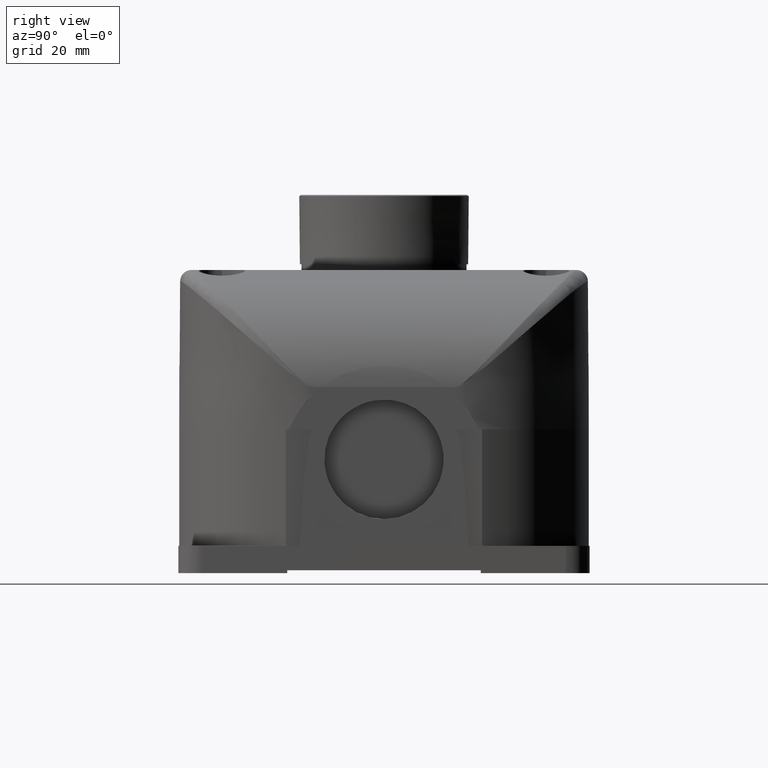
[diagram: clean part render]
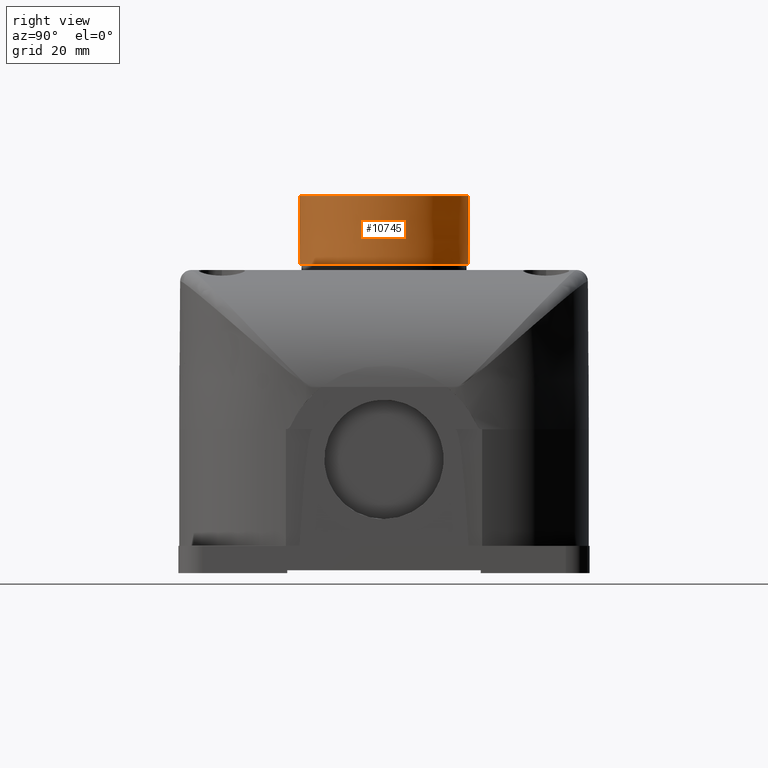
[diagram: same view with one face highlighted and labeled with its STEP entity id]
A machine part, right view. The second image highlights one B-rep face of the part: STEP entity #10745.
In plain terms, the highlighted conical surface has half-angle 0.5 deg.
Its self-contained STEP definition (entity closure, byte-faithful):
#78 = DIRECTION ( 'NONE',  ( -1.153649073154061478E-16, 0.008726535498376599212, 0.9999619230641711987 ) ) ;
#468 = ORIENTED_EDGE ( 'NONE', *, *, #16018, .T. ) ;
#476 = EDGE_CURVE ( 'NONE', #13682, #22904, #6067, .T. ) ;
#511 = LINE ( 'NONE', #15036, #1916 ) ;
#840 = DIRECTION ( 'NONE',  ( -1.397256399546015091E-15, -1.000000000000000000, -6.520529864548069769E-15 ) ) ;
#1064 = ORIENTED_EDGE ( 'NONE', *, *, #476, .T. ) ;
#1747 = CIRCLE ( 'NONE', #13913, 0.5865454603504136610 ) ;
#1916 = VECTOR ( 'NONE', #9442, 39.37007874015748143 ) ;
#3009 = AXIS2_PLACEMENT_3D ( 'NONE', #13456, #16904, #8329 ) ;
#3766 = CARTESIAN_POINT ( 'NONE',  ( 1.633858267716535195, -0.8365722992644355482, 2.610236520290831308 ) ) ;
#4059 = AXIS2_PLACEMENT_3D ( 'NONE', #14356, #10912, #19837 ) ;
#4295 = DIRECTION ( 'NONE',  ( -1.164380332955012001E-16, 1.746570499432519850E-16, 1.000000000000000000 ) ) ;
#4741 = CARTESIAN_POINT ( 'NONE',  ( 1.633858267716535195, -1.423117759614849209, 2.610236520290834417 ) ) ;
#4857 = DIRECTION ( 'NONE',  ( 1.224646799147350002E-16, -1.281858686408449938E-16, -1.000000000000000000 ) ) ;
#6067 = CIRCLE ( 'NONE', #3009, 0.5824225280690117357 ) ;
#8329 = DIRECTION ( 'NONE',  ( 0.000000000000000000, -1.000000000000000000, 0.000000000000000000 ) ) ;
#8624 = CIRCLE ( 'NONE', #4059, 0.5865454603504136610 ) ;
#9132 = CARTESIAN_POINT ( 'NONE',  ( 1.633858267716535195, -0.8365722992644355482, 2.610236520290834417 ) ) ;
#9442 = DIRECTION ( 'NONE',  ( -1.164335996919793922E-16, -0.008726535498376248798, 0.9999619230641711987 ) ) ;
#9772 = CARTESIAN_POINT ( 'NONE',  ( 2.220403728066946414, -1.423117759614849209, 2.610236520290834417 ) ) ;
#10745 = ADVANCED_FACE ( 'NONE', ( #13112 ), #10890, .T. ) ;
#10820 = EDGE_CURVE ( 'NONE', #16722, #23276, #1747, .T. ) ;
#10890 = CONICAL_SURFACE ( 'NONE', #17673, 0.5865454603504136610, 0.008726646259974137065 ) ;
#10912 = DIRECTION ( 'NONE',  ( 1.224646799147350002E-16, -1.281858686408449938E-16, -1.000000000000000000 ) ) ;
#10915 = LINE ( 'NONE', #3766, #16429 ) ;
#11573 = DIRECTION ( 'NONE',  ( 0.000000000000000000, -1.000000000000000000, 0.000000000000000000 ) ) ;
#12815 = EDGE_CURVE ( 'NONE', #13682, #23310, #511, .T. ) ;
#13112 = FACE_OUTER_BOUND ( 'NONE', #15852, .T. ) ;
#13455 = CARTESIAN_POINT ( 'NONE',  ( 1.633858267716535195, -2.005540287683861056, 2.137795275590550048 ) ) ;
#13456 = CARTESIAN_POINT ( 'NONE',  ( 1.633858267716535195, -1.423117759614849653, 2.137795275590550048 ) ) ;
#13682 = VERTEX_POINT ( 'NONE', #13455 ) ;
#13913 = AXIS2_PLACEMENT_3D ( 'NONE', #4741, #4857, #840 ) ;
#14200 = ORIENTED_EDGE ( 'NONE', *, *, #10820, .T. ) ;
#14356 = CARTESIAN_POINT ( 'NONE',  ( 1.633858267716535195, -1.423117759614849209, 2.610236520290834417 ) ) ;
#15036 = CARTESIAN_POINT ( 'NONE',  ( 1.633858267716535195, -2.009663219965263092, 2.610236520290831308 ) ) ;
#15247 = ORIENTED_EDGE ( 'NONE', *, *, #19234, .T. ) ;
#15852 = EDGE_LOOP ( 'NONE', ( #1064, #468, #14200, #15247, #22526 ) ) ;
#16018 = EDGE_CURVE ( 'NONE', #22904, #16722, #10915, .T. ) ;
#16429 = VECTOR ( 'NONE', #78, 39.37007874015748143 ) ;
#16722 = VERTEX_POINT ( 'NONE', #9132 ) ;
#16904 = DIRECTION ( 'NONE',  ( -1.164380332955012001E-16, 1.746570499432519850E-16, 1.000000000000000000 ) ) ;
#17673 = AXIS2_PLACEMENT_3D ( 'NONE', #20618, #4295, #11573 ) ;
#18701 = CARTESIAN_POINT ( 'NONE',  ( 1.633858267716535195, -2.009663219965263092, 2.610236520290834417 ) ) ;
#19152 = CARTESIAN_POINT ( 'NONE',  ( 1.633858267716535195, -0.8406952315458379177, 2.137795275590550048 ) ) ;
#19234 = EDGE_CURVE ( 'NONE', #23276, #23310, #8624, .T. ) ;
#19837 = DIRECTION ( 'NONE',  ( -4.657521331820049976E-16, -1.000000000000000000, -6.520529864548069769E-15 ) ) ;
#20618 = CARTESIAN_POINT ( 'NONE',  ( 1.633858267716535195, -1.423117759614849209, 2.610236520290831308 ) ) ;
#22526 = ORIENTED_EDGE ( 'NONE', *, *, #12815, .F. ) ;
#22904 = VERTEX_POINT ( 'NONE', #19152 ) ;
#23276 = VERTEX_POINT ( 'NONE', #9772 ) ;
#23310 = VERTEX_POINT ( 'NONE', #18701 ) ;